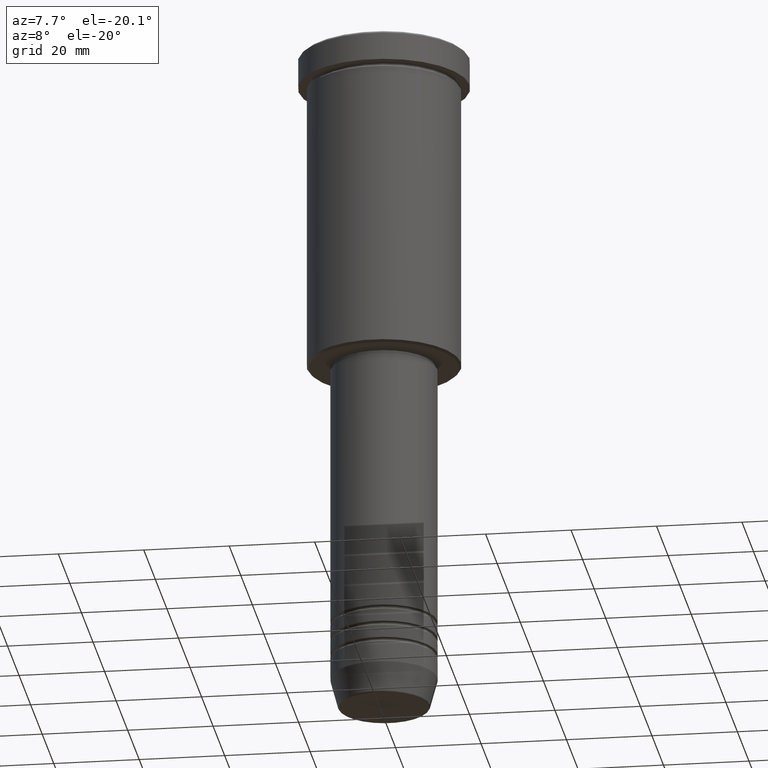
[diagram: clean part render]
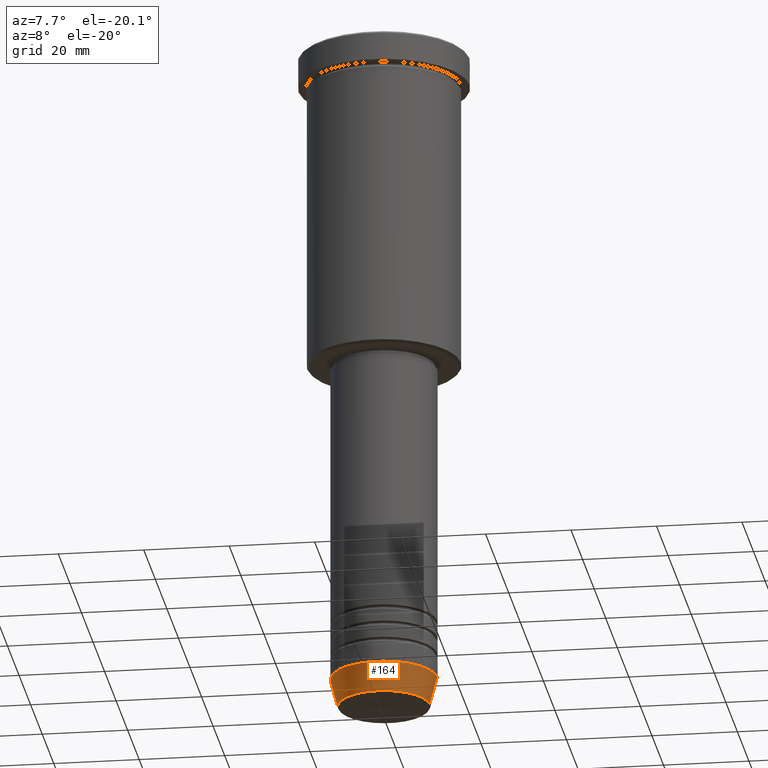
[diagram: same view with one face highlighted and labeled with its STEP entity id]
A machine part, auxiliary view. The second image highlights one B-rep face of the part: STEP entity #164.
In plain terms, the highlighted conical surface has half-angle 15 deg.
Its self-contained STEP definition (entity closure, byte-faithful):
#60 = CIRCLE ( 'NONE', #740, 10.72365507213719660 ) ;
#83 = DIRECTION ( 'NONE',  ( 1.000000000000000000, 0.000000000000000000, 0.000000000000000000 ) ) ;
#96 = CONICAL_SURFACE ( 'NONE', #996, 12.50000000000000000, 0.2617993877991490193 ) ;
#105 = CARTESIAN_POINT ( 'NONE',  ( 10.72365507213719660, 0.000000000000000000, -159.6294095225512706 ) ) ;
#113 = VECTOR ( 'NONE', #672, 1000.000000000000000 ) ;
#125 = VERTEX_POINT ( 'NONE', #823 ) ;
#153 = CARTESIAN_POINT ( 'NONE',  ( -12.50000000000000000, 1.530808498934191521E-15, -153.0000000000000000 ) ) ;
#164 = ADVANCED_FACE ( 'NONE', ( #982 ), #96, .T. ) ;
#185 = DIRECTION ( 'NONE',  ( -0.000000000000000000, -0.000000000000000000, 1.000000000000000000 ) ) ;
#192 = CARTESIAN_POINT ( 'NONE',  ( 12.50000000000000000, 0.000000000000000000, -153.0000000000000000 ) ) ;
#242 = ORIENTED_EDGE ( 'NONE', *, *, #678, .T. ) ;
#260 = VERTEX_POINT ( 'NONE', #105 ) ;
#269 = DIRECTION ( 'NONE',  ( -0.000000000000000000, -0.000000000000000000, 1.000000000000000000 ) ) ;
#292 = CIRCLE ( 'NONE', #1098, 12.50000000000000000 ) ;
#324 = CARTESIAN_POINT ( 'NONE',  ( -12.50000000000000000, 1.530808498934191521E-15, -153.0000000000000000 ) ) ;
#425 = CARTESIAN_POINT ( 'NONE',  ( 12.50000000000000000, 0.000000000000000000, -153.0000000000000000 ) ) ;
#462 = DIRECTION ( 'NONE',  ( 0.2588190451025203509, 0.000000000000000000, 0.9659258262890684232 ) ) ;
#527 = VERTEX_POINT ( 'NONE', #153 ) ;
#548 = CARTESIAN_POINT ( 'NONE',  ( 0.000000000000000000, 0.000000000000000000, -153.0000000000000000 ) ) ;
#558 = ORIENTED_EDGE ( 'NONE', *, *, #841, .T. ) ;
#646 = ORIENTED_EDGE ( 'NONE', *, *, #1116, .F. ) ;
#655 = CARTESIAN_POINT ( 'NONE',  ( 0.000000000000000000, 0.000000000000000000, -159.6294095225512706 ) ) ;
#672 = DIRECTION ( 'NONE',  ( -0.2588190451025203509, 3.169619151431760011E-17, 0.9659258262890684232 ) ) ;
#678 = EDGE_CURVE ( 'NONE', #125, #260, #60, .T. ) ;
#708 = DIRECTION ( 'NONE',  ( 1.000000000000000000, 0.000000000000000000, 0.000000000000000000 ) ) ;
#740 = AXIS2_PLACEMENT_3D ( 'NONE', #655, #1123, #1028 ) ;
#762 = LINE ( 'NONE', #324, #113 ) ;
#785 = EDGE_CURVE ( 'NONE', #125, #527, #762, .T. ) ;
#800 = ORIENTED_EDGE ( 'NONE', *, *, #785, .F. ) ;
#823 = CARTESIAN_POINT ( 'NONE',  ( -10.72365507213719660, 1.422038742429750713E-15, -159.6294095225512706 ) ) ;
#841 = EDGE_CURVE ( 'NONE', #260, #990, #1086, .T. ) ;
#966 = CARTESIAN_POINT ( 'NONE',  ( 0.000000000000000000, 0.000000000000000000, -153.0000000000000000 ) ) ;
#982 = FACE_OUTER_BOUND ( 'NONE', #1009, .T. ) ;
#990 = VERTEX_POINT ( 'NONE', #425 ) ;
#996 = AXIS2_PLACEMENT_3D ( 'NONE', #548, #185, #708 ) ;
#1009 = EDGE_LOOP ( 'NONE', ( #800, #242, #558, #646 ) ) ;
#1028 = DIRECTION ( 'NONE',  ( 1.000000000000000000, 0.000000000000000000, 0.000000000000000000 ) ) ;
#1075 = VECTOR ( 'NONE', #462, 1000.000000000000000 ) ;
#1086 = LINE ( 'NONE', #192, #1075 ) ;
#1098 = AXIS2_PLACEMENT_3D ( 'NONE', #966, #269, #83 ) ;
#1116 = EDGE_CURVE ( 'NONE', #527, #990, #292, .T. ) ;
#1123 = DIRECTION ( 'NONE',  ( -0.000000000000000000, -0.000000000000000000, 1.000000000000000000 ) ) ;